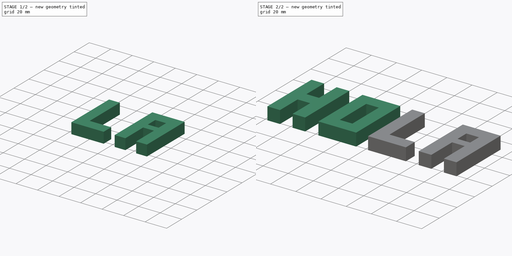
[diagram: build sequence overview — one tinted view per stage of 2, left to right]
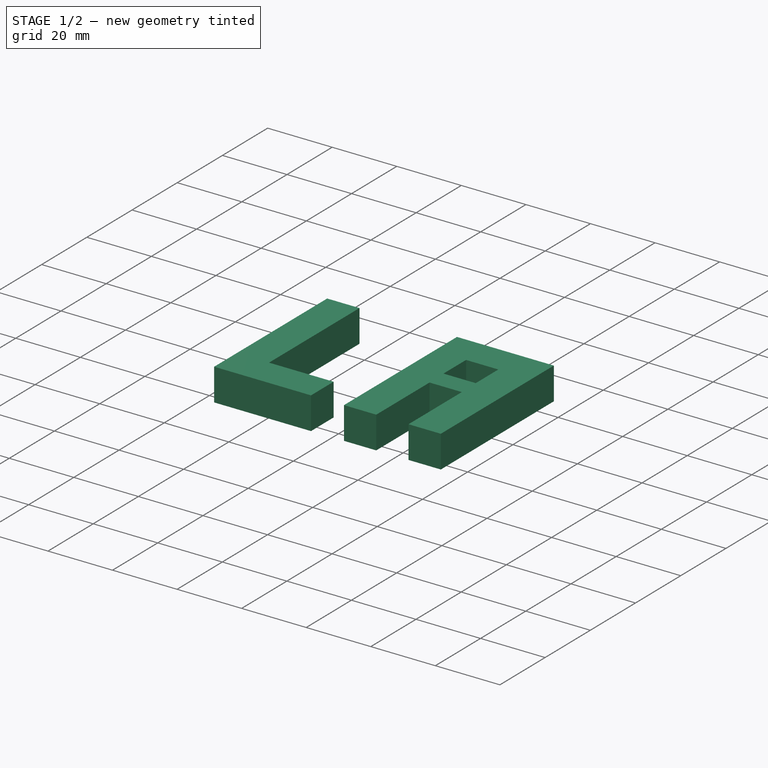
[diagram: stage 1 of 2 — iso view after this stage's code; geometry added in this stage tinted green]
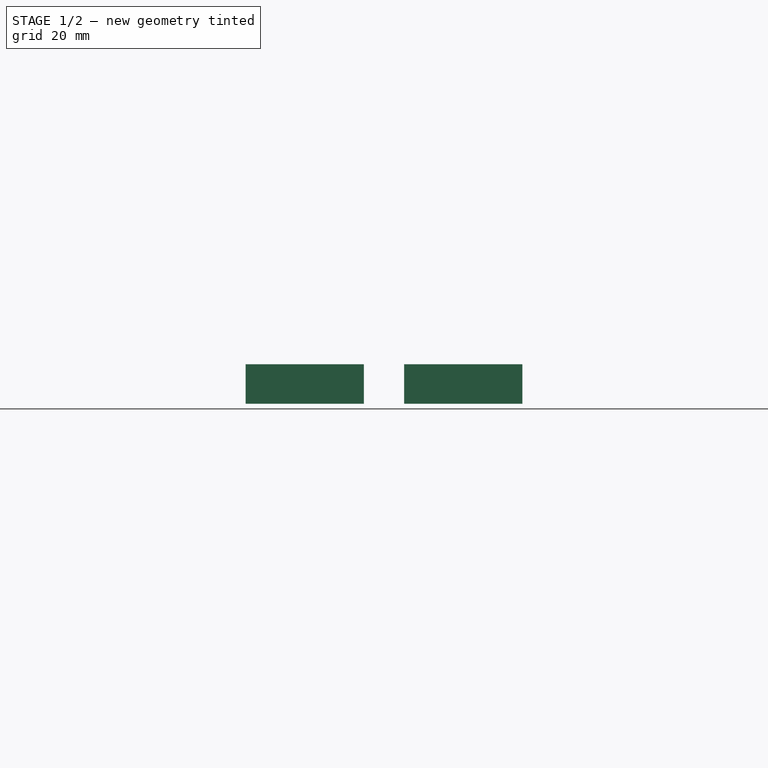
[diagram: stage 1 of 2 — front view after this stage's code; geometry added in this stage tinted green]
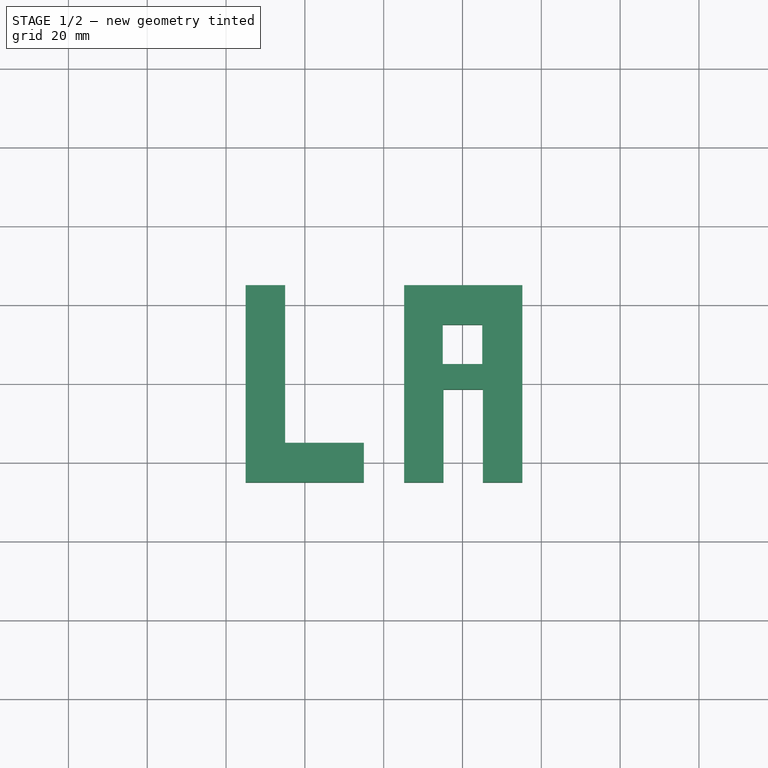
[diagram: stage 1 of 2 — top view after this stage's code; geometry added in this stage tinted green]
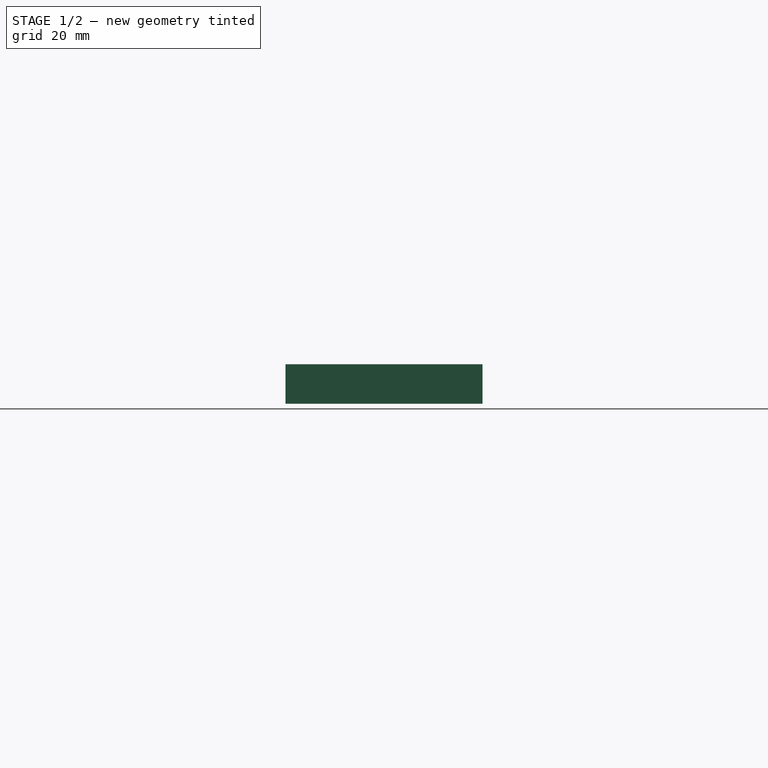
[diagram: stage 1 of 2 — right view after this stage's code; geometry added in this stage tinted green]
FCSTD DOCUMENT  (FreeCAD 0.16R6707 (Git))
Label: HOLA
License: CreativeCommons Attribution-ShareAlike
LicenseURL: http://creativecommons.org/licenses/by-sa/4.0/
objects: Sketcher::SketchObject×4, PartDesign::Pad×4
note: 12 computed .brp shape members not serialized (recipe doc carries the construction recipe); baked Part::Feature solids carry a one-line shape summary decoded from their .brp

FEATURE [Sketcher::SketchObject] Sketch002  label="Boceto_L"
  Placement = pos=(85,0,0) rot=(0,0,1;0rad)
  sketch-geometry (6):
    g0: LineSegment StartX=-20.0279 StartY=-25 StartZ=0 EndX=9.97212 EndY=-25 EndZ=0
    g1: LineSegment StartX=9.97212 StartY=-25 StartZ=0 EndX=9.97212 EndY=-15 EndZ=0
    g2: LineSegment StartX=9.97212 StartY=-15 StartZ=0 EndX=-10.0279 EndY=-15 EndZ=0
    g3: LineSegment StartX=-10.0279 StartY=-15 StartZ=0 EndX=-10.0279 EndY=25 EndZ=0
    g4: LineSegment StartX=-10.0279 StartY=25 StartZ=0 EndX=-20.0279 EndY=25 EndZ=0
    g5: LineSegment StartX=-20.0279 StartY=25 StartZ=0 EndX=-20.0279 EndY=-25 EndZ=0
  constraints (18):
    c: Coincident(g0,g1)
    c: Coincident(g1,g2)
    c: Horizontal(g2)
    c: Coincident(g2,g3)
    c: Vertical(g3)
    c: Coincident(g3,g4)
    c: Coincident(g4,g5)
    c: Vertical(g5)
    c: Coincident(g0,g5)
    c: Perpendicular(g0,g5)
    c: Perpendicular(g5,g4)
    c: Perpendicular(g0,g1)
    c: DistanceX(g4,g3) = 10
    c: DistanceY(g0,g1) = 10
    c: DistanceX(g0,g0) = 30
    c: DistanceX(g2,g1) = 20
    c: DistanceY(g0,g4) = 50
    c: Symmetric(g4,g0,g-1)
FEATURE [PartDesign::Pad] Pad002  label="L"
  Length = 10
  Length2 = 100
  Placement = pos=(85,0,0) rot=(0,0,1;0rad)
  Sketch = -> Sketch002
  Type = 0
FEATURE [Sketcher::SketchObject] Sketch003  label="Boceto_A"
  Placement = pos=(125,0,0) rot=(0,0,1;0rad)
  sketch-geometry (12):
    g0: LineSegment StartX=-19.8165 StartY=-25 StartZ=0 EndX=-19.8165 EndY=25 EndZ=0
    g1: LineSegment StartX=-19.8165 StartY=25 StartZ=0 EndX=10.1835 EndY=25 EndZ=0
    g2: LineSegment StartX=10.1835 StartY=25 StartZ=0 EndX=10.1835 EndY=-25 EndZ=0
    g3: LineSegment StartX=10.1835 StartY=-25 StartZ=0 EndX=0.183496 EndY=-25 EndZ=0
    g4: LineSegment StartX=0.183496 StartY=-25 StartZ=0 EndX=0.183496 EndY=-1.4253 EndZ=0
    g5: LineSegment StartX=0.183496 StartY=-1.4253 StartZ=0 EndX=-9.8165 EndY=-1.4253 EndZ=0
    g6: LineSegment StartX=-9.8165 StartY=-1.4253 StartZ=0 EndX=-9.8165 EndY=-25 EndZ=0
    g7: LineSegment StartX=-9.8165 StartY=-25 StartZ=0 EndX=-19.8165 EndY=-25 EndZ=0
    g8: LineSegment StartX=-10 StartY=15 StartZ=0 EndX=0 EndY=15 EndZ=0
    g9: LineSegment StartX=0 StartY=15 StartZ=0 EndX=0 EndY=5 EndZ=0
    g10: LineSegment StartX=0 StartY=5 StartZ=0 EndX=-10 EndY=5 EndZ=0
    g11: LineSegment StartX=-10 StartY=5 StartZ=0 EndX=-10 EndY=15 EndZ=0
  constraints (35):
    c: Coincident(g0,g1)
    c: Coincident(g1,g2)
    c: Coincident(g2,g3)
    c: Horizontal(g3)
    c: Coincident(g3,g4)
    c: Vertical(g4)
    c: Coincident(g4,g5)
    c: Coincident(g5,g6)
    c: Coincident(g6,g7)
    c: Coincident(g0,g7)
    c: Coincident(g8,g9)
    c: Coincident(g9,g10)
    c: Coincident(g10,g11)
    c: Coincident(g11,g8)
    c: Horizontal(g8)
    c: Horizontal(g10)
    c: Vertical(g9)
    c: Vertical(g11)
    c: PointOnObject(g9,g-2)
    c: DistanceY(g0,g0) = 50
    c: Equal(g0,g2)
    c: Perpendicular(g1,g0)
    c: Perpendicular(g2,g1)
    c: DistanceX(g0,g1) = 30
    c: DistanceX(g8,g8) = 10
    c: Equal(g11,g8)
    c: DistanceY(g8,g0) = 10
    c: DistanceX(g0,g6) = 10
    c: DistanceX(g3,g2) = 10
    c: Perpendicular(g0,g7)
    c: Perpendicular(g7,g6)
    c: Perpendicular(g5,g6)
    c: Perpendicular(g4,g5)
    c: Symmetric(g1,g2,g-1)
    c: Symmetric(g0,g0,g-1)
FEATURE [PartDesign::Pad] Pad003  label="A"
  Length = 10
  Length2 = 100
  Placement = pos=(125,0,0) rot=(0,0,1;0rad)
  Sketch = -> Sketch003
  Type = 0
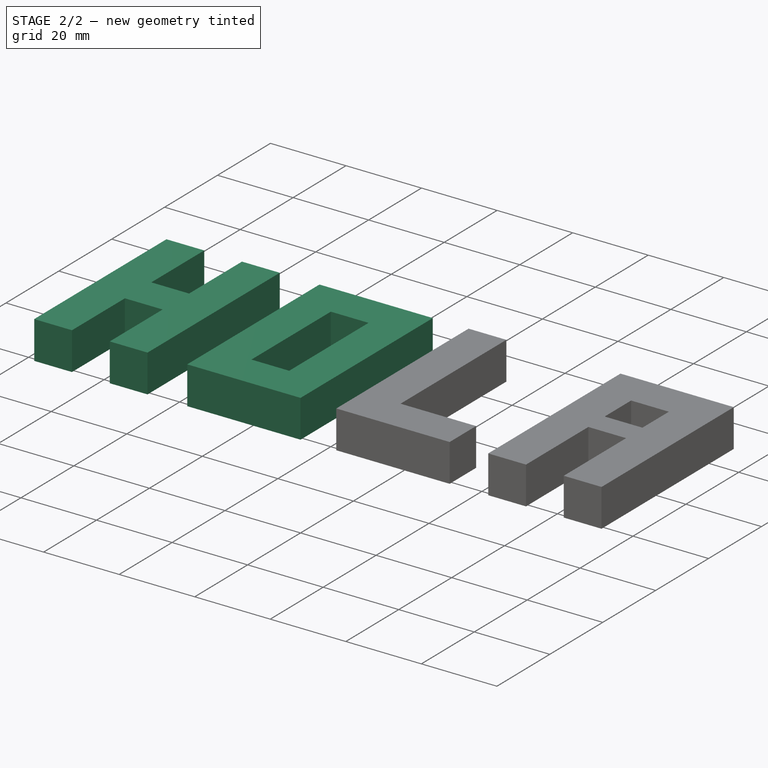
[diagram: stage 2 of 2 — iso view after this stage's code; geometry added in this stage tinted green]
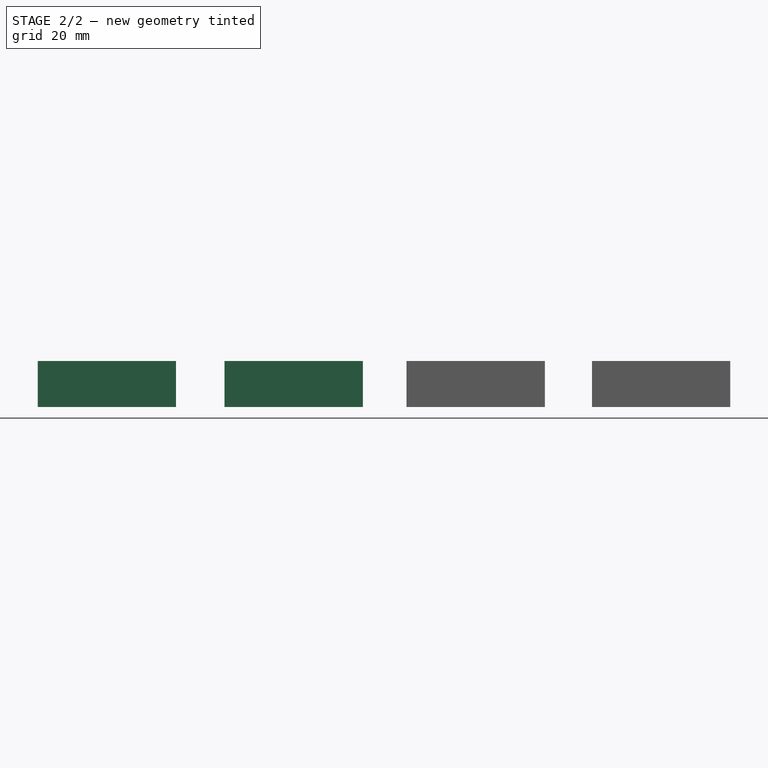
[diagram: stage 2 of 2 — front view after this stage's code; geometry added in this stage tinted green]
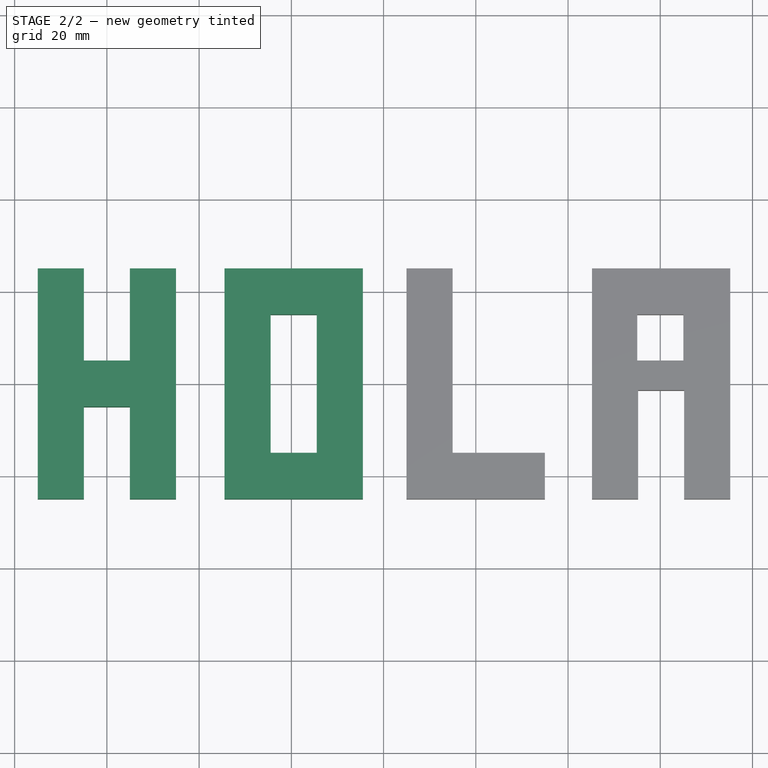
[diagram: stage 2 of 2 — top view after this stage's code; geometry added in this stage tinted green]
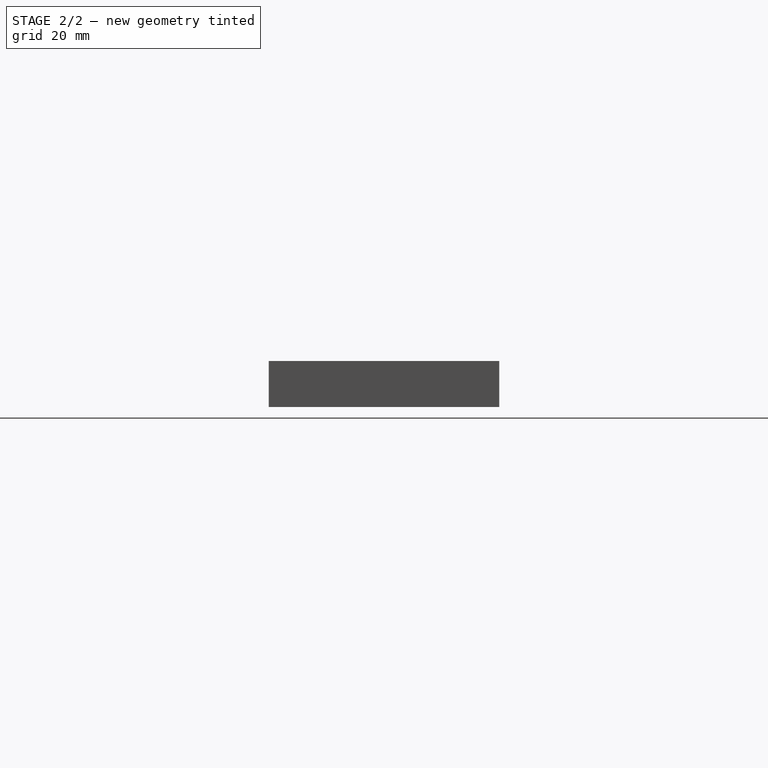
[diagram: stage 2 of 2 — right view after this stage's code; geometry added in this stage tinted green]
FEATURE [Sketcher::SketchObject] Sketch  label="Boceto_H"
  sketch-geometry (12):
    g0: LineSegment StartX=-15 StartY=25 StartZ=0 EndX=-5 EndY=25 EndZ=0
    g1: LineSegment StartX=-5 StartY=25 StartZ=0 EndX=-4.99992 EndY=5.00004 EndZ=0
    g2: LineSegment StartX=-4.99992 StartY=5.00004 StartZ=0 EndX=5.00008 EndY=5 EndZ=0
    g3: LineSegment StartX=5.00008 StartY=5 StartZ=0 EndX=5 EndY=25 EndZ=0
    g4: LineSegment StartX=5 StartY=25 StartZ=0 EndX=15 EndY=25 EndZ=0
    g5: LineSegment StartX=15 StartY=25 StartZ=0 EndX=15 EndY=-25 EndZ=0
    g6: LineSegment StartX=15 StartY=-25 StartZ=0 EndX=5 EndY=-25 EndZ=0
    g7: LineSegment StartX=5 StartY=-25 StartZ=0 EndX=5.00008 EndY=-5 EndZ=0
    g8: LineSegment StartX=5.00008 StartY=-5 StartZ=0 EndX=-4.99992 EndY=-4.99996 EndZ=0
    g9: LineSegment StartX=-4.99992 StartY=-4.99996 StartZ=0 EndX=-5 EndY=-25 EndZ=0
    g10: LineSegment StartX=-5 StartY=-25 StartZ=0 EndX=-15 EndY=-25 EndZ=0
    g11: LineSegment StartX=-15 StartY=-25 StartZ=0 EndX=-15 EndY=25 EndZ=0
  constraints (35):
    c: Horizontal(g0)
    c: Coincident(g2,g3)
    c: Coincident(g3,g4)
    c: Coincident(g4,g5)
    c: Coincident(g5,g6)
    c: Coincident(g6,g7)
    c: Coincident(g7,g8)
    c: Coincident(g8,g9)
    c: Coincident(g9,g10)
    c: Coincident(g10,g11)
    c: Coincident(g0,g11)
    c: Parallel(g1,g3)
    c: Parallel(g9,g7)
    c: Parallel(g8,g2)
    c: Perpendicular(g9,g8)
    c: Equal(g8,g2)
    c: Equal(g10,g0)
    c: Parallel(g5,g11)
    c: Equal(g11,g5)
    c: Perpendicular(g5,g4)
    c: DistanceY(g10,g0) = 50
    c: DistanceY(g8,g1) = 10
    c: Symmetric(g7,g2,g-1)
    c: Symmetric(g5,g4,g-1)
    c: Equal(g0,g4)
    c: DistanceX(g0,g0) = 10
    c: Equal(g0,g4)
    c: DistanceX(g10,g5) = 30
    c: Equal(g4,g6)
    c: Equal(g5,g11)
    c: DistanceY(g6,g7) = 20
    c: Coincident(g0,g1)
    c: Coincident(g1,g2)
    c: Symmetric(g0,g3,g-2)
    c: Perpendicular(g9,g10)
FEATURE [PartDesign::Pad] Pad  label="H"
  Length = 10
  Length2 = 100
  Sketch = -> Sketch
  Type = 0
FEATURE [Sketcher::SketchObject] Sketch001  label="Boceto_O"
  Placement = pos=(40,0,0) rot=(0,0,1;0rad)
  sketch-geometry (9):
    g0: LineSegment StartX=-14.4946 StartY=-25 StartZ=0 EndX=-14.4946 EndY=25 EndZ=0
    g1: LineSegment StartX=-14.4946 StartY=25 StartZ=0 EndX=15.5054 EndY=25 EndZ=0
    g2: LineSegment StartX=15.5054 StartY=25 StartZ=0 EndX=15.5054 EndY=-25 EndZ=0
    g3: LineSegment StartX=15.5054 StartY=-25 StartZ=0 EndX=-14.4946 EndY=-25 EndZ=0
    g4: LineSegment StartX=-4.49458 StartY=15 StartZ=0 EndX=5.50542 EndY=15 EndZ=0
    g5: LineSegment StartX=5.50542 StartY=15 StartZ=0 EndX=5.50542 EndY=-15 EndZ=0
    g6: LineSegment StartX=5.50542 StartY=-15 StartZ=0 EndX=-4.49458 EndY=-15 EndZ=0
    g7: LineSegment StartX=-4.49458 StartY=-15 StartZ=0 EndX=-4.49458 EndY=15 EndZ=0
    g8: GeomPoint [constr] X=-26.8682 Y=-25 Z=0
  constraints (28):
    c: Vertical(g0)
    c: Coincident(g0,g1)
    c: Horizontal(g1)
    c: Coincident(g1,g2)
    c: Vertical(g2)
    c: Coincident(g2,g3)
    c: Coincident(g3,g0)
    c: Horizontal(g3)
    c: Coincident(g4,g5)
    c: Coincident(g5,g6)
    c: Coincident(g6,g7)
    c: Coincident(g7,g4)
    c: Horizontal(g4)
    c: Horizontal(g6)
    c: Vertical(g5)
    c: Vertical(g7)
    c: PointOnObject(g8,g3)
    c: DistanceY(g3,g0) = 50
    c: Equal(g0,g2)
    c: DistanceY(g6,g4) = 30
    c: Equal(g7,g5)
    c: Equal(g1,g3)
    c: DistanceX(g0,g1) = 30
    c: Equal(g4,g6)
    c: DistanceX(g4,g4) = 10
    c: DistanceX(g0,g4) = 10
    c: DistanceY(g4,g0) = 10
    c: Symmetric(g4,g5,g-1)
FEATURE [PartDesign::Pad] Pad001  label="O"
  Length = 10
  Length2 = 100
  Placement = pos=(40,0,0) rot=(0,0,1;0rad)
  Sketch = -> Sketch001
  Type = 0
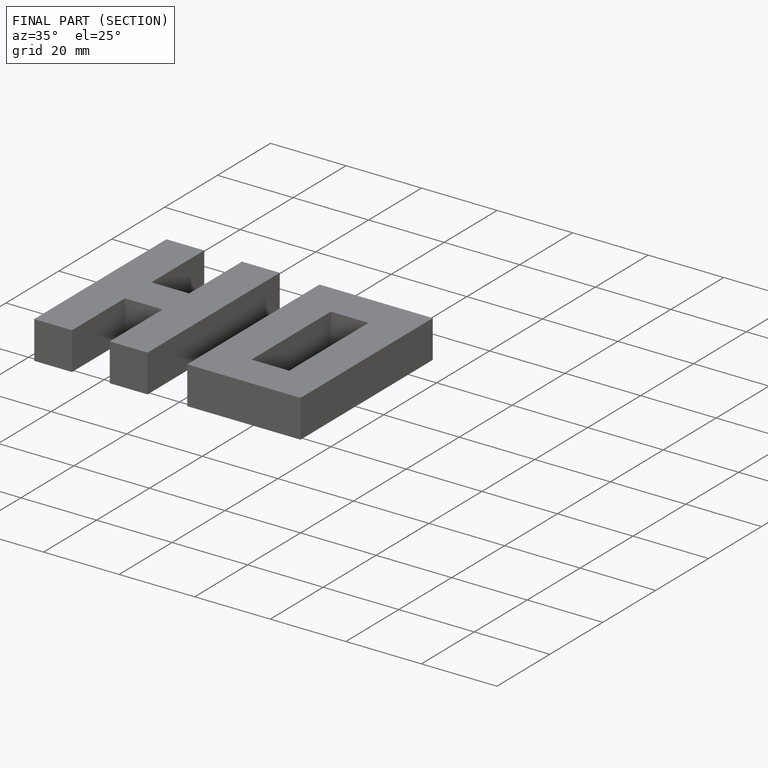
[diagram: finished part — half-section view (interior)]
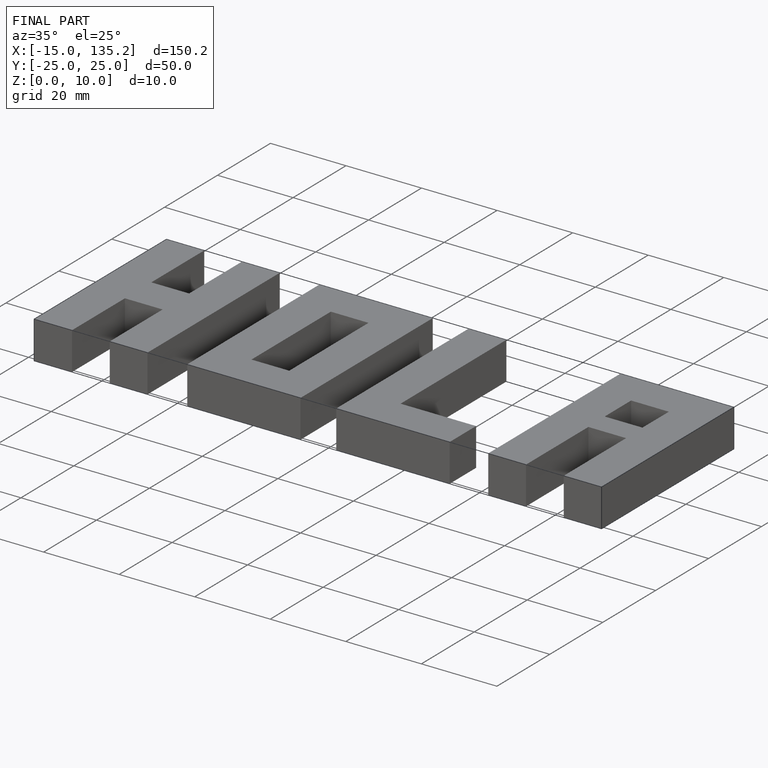
[diagram: finished part — iso view with bounding-box wireframe]
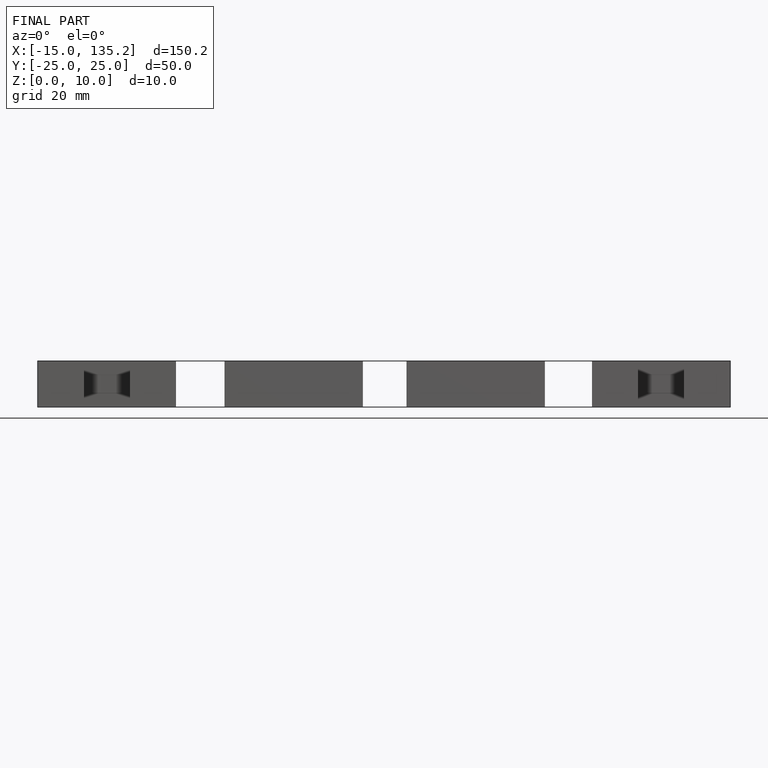
[diagram: finished part — front view with bounding-box wireframe]
